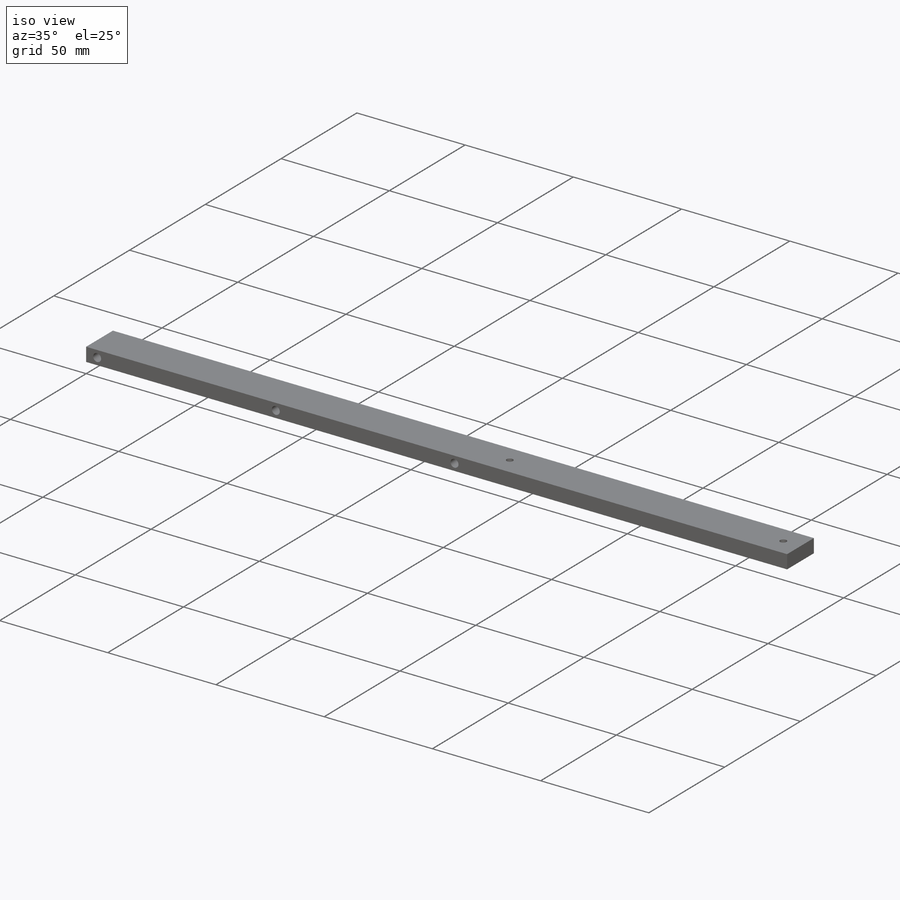
[diagram: iso view]
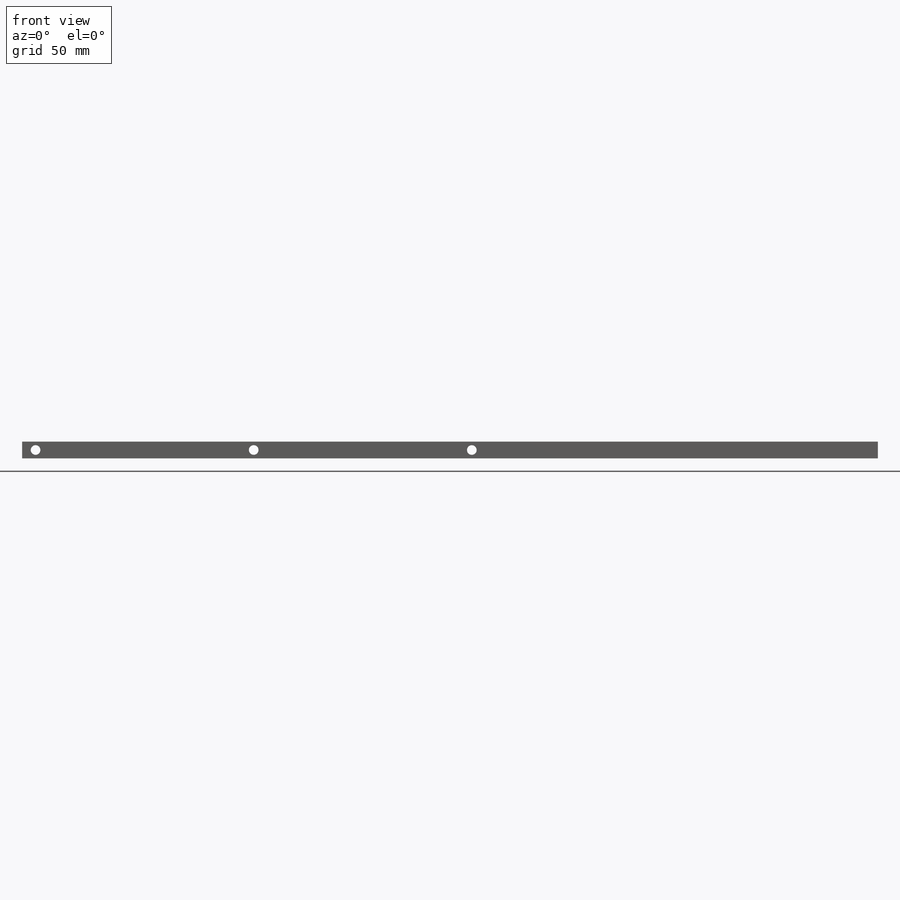
[diagram: front view]
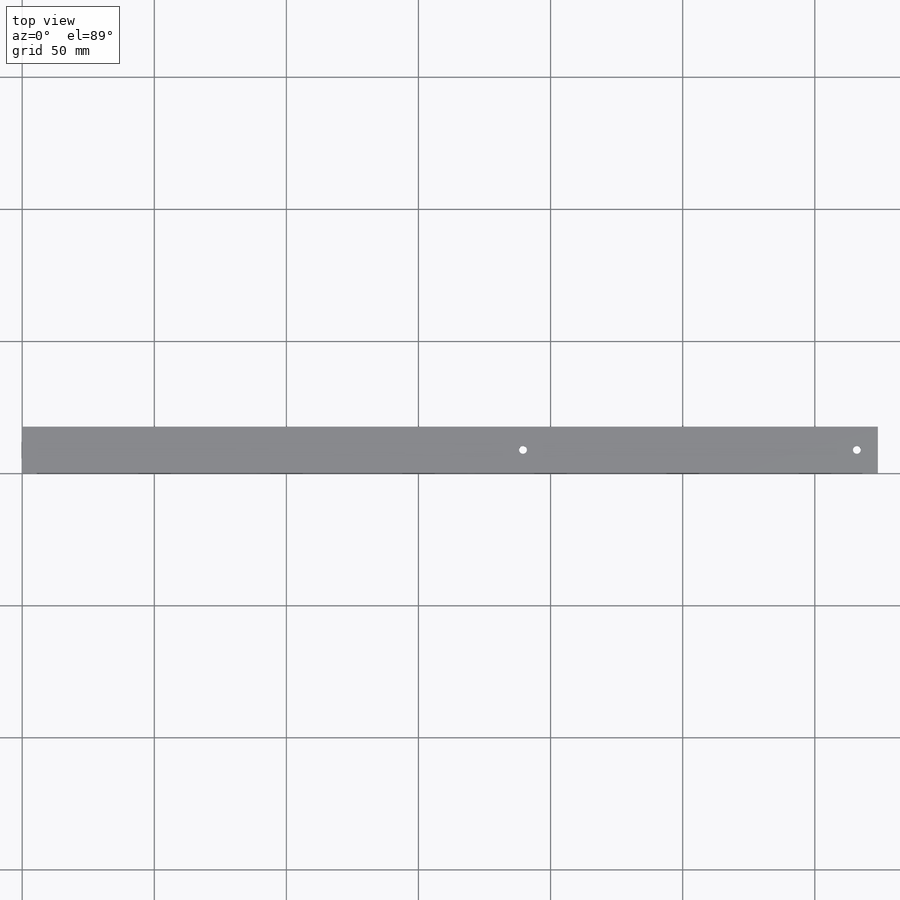
[diagram: top view]
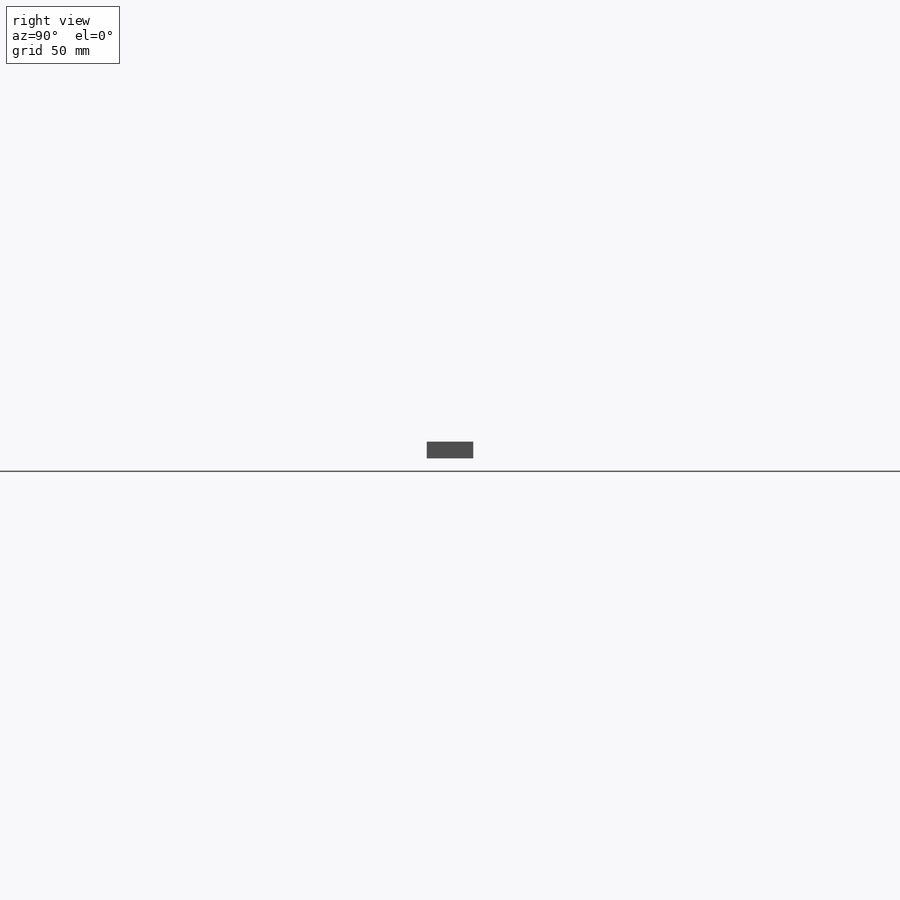
[diagram: right view]
SOLIDWORKS PART (.sldprt)
format: sldprt  version: not decoded by parser v0  size: 212,480 bytes
history: native  units: mm
features: sketch x5, hole x2, material x1, extrude x1 (+13 scaffold rows collapsed)
feature tree (22):
  scaffold x13  (default folders/planes/origin — collapsed)
  material  "Material <not specified>"
  sketch  "Sketch1"  dims[D1=17.6276mm D2=6.35mm]
  extrude  "Boss-Extrude1"  Depth=323.85mm
  hole  "#6 Clearance Hole1"  Diameter=3.6576mm Depth=17.6276mm
  sketch  "Sketch3"  dims[D1=5.08mm D2=82.55mm D3=82.55mm D4=~4.00926mm]
  sketch  "Sketch2"  dims[hole-wizard template sketch: 60 standard entries collapsed; hole parameters kept: c18.Thru Hole Depth=17.6276mm]
  hole  "CBORE for #4 Binding Head Machine Screw2"  Diameter=2.9464mm Depth=6.35mm
  sketch  "Sketch5"  dims[c1.D1=7.8867mm c1.D2=6.35mm c1.D3=126.365mm c2.D2=8.8138mm c2.D4=8.8138mm c2.D1=189.5475mm]
  sketch  "Sketch4"  dims[hole-wizard template sketch: 41 standard entries collapsed; hole parameters kept: c12.Thru Hole Dia.=2.9464mm c12.Thru Hole Depth=6.35mm c12.C'Bore Dia.=4.8006mm c12.C'Bore Depth=2.8448mm]
decode coverage: 8 of 8 modeling features carry decoded parameters
note: ~ marks probable driven/reference dimensions
note: suppression state not decoded; provenance and decode notes live in map.json
